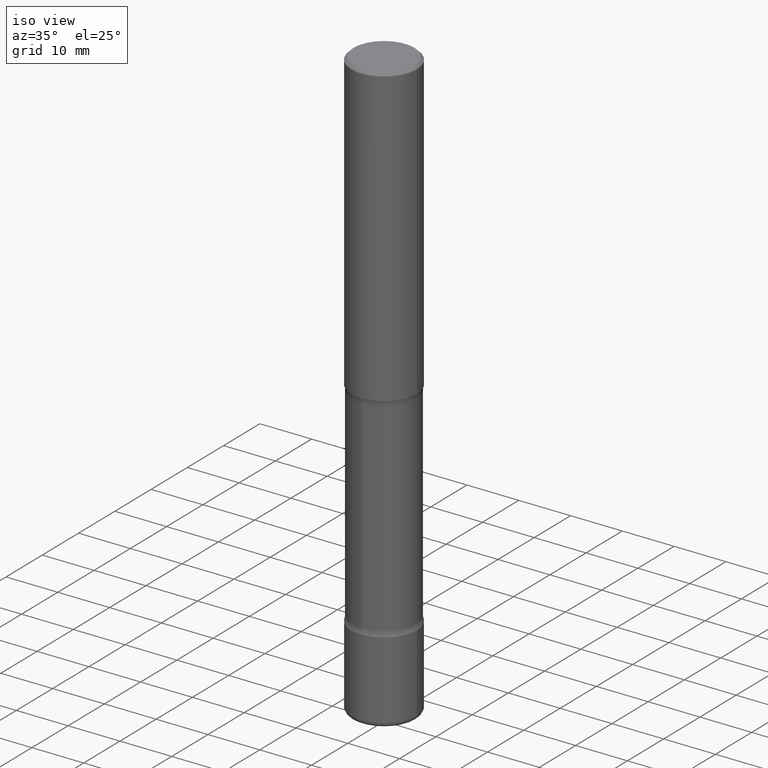
[diagram: clean part render]
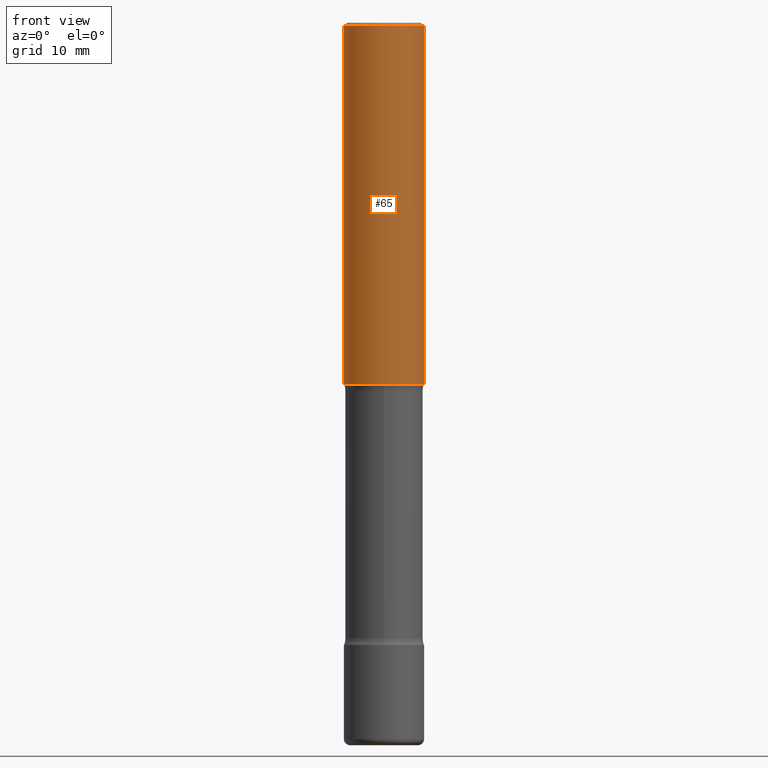
[diagram: tour spotlight — one face highlighted and labeled with its STEP entity id]
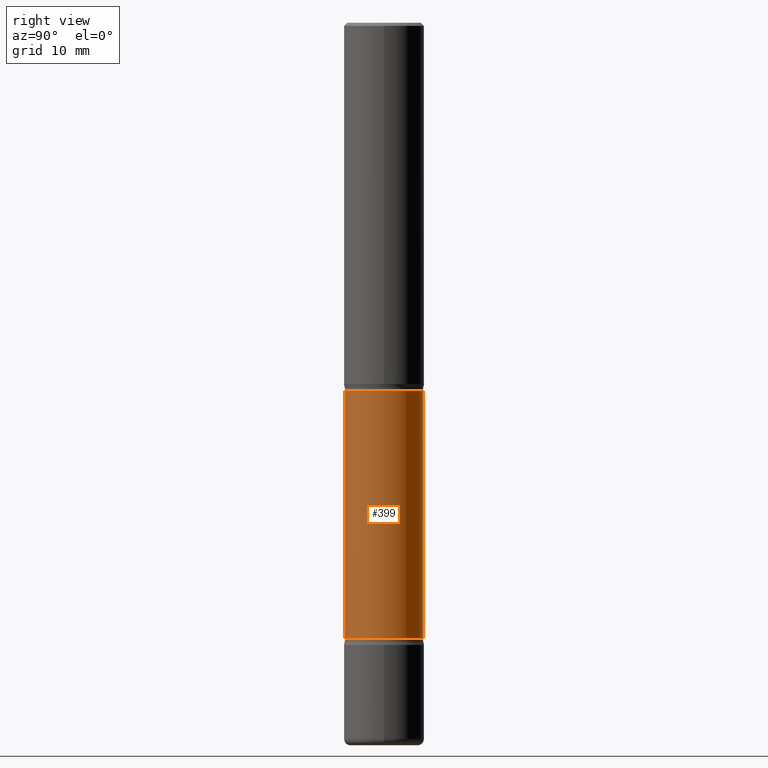
[diagram: tour spotlight — one face highlighted and labeled with its STEP entity id]
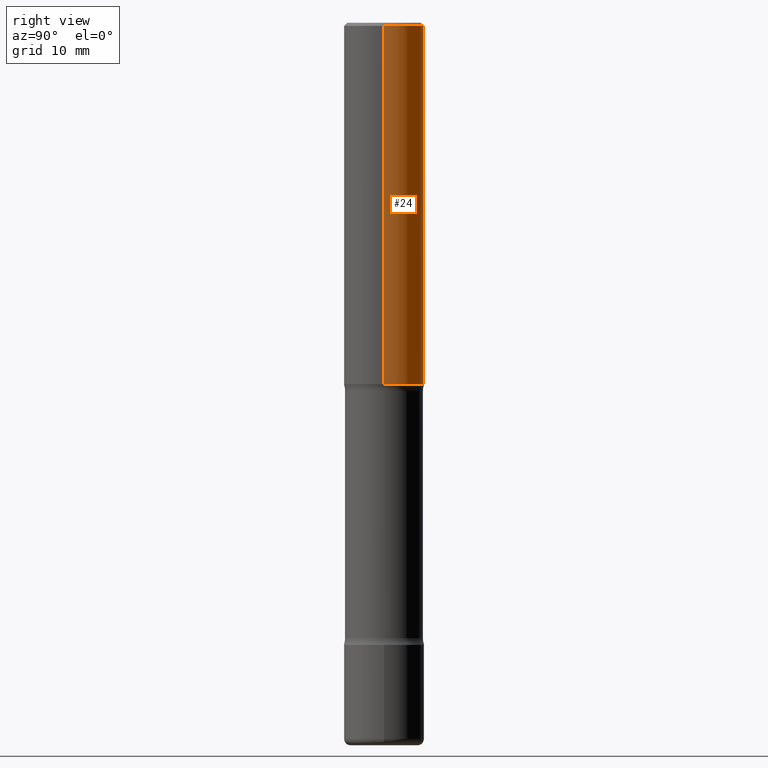
[diagram: tour spotlight — one face highlighted and labeled with its STEP entity id]
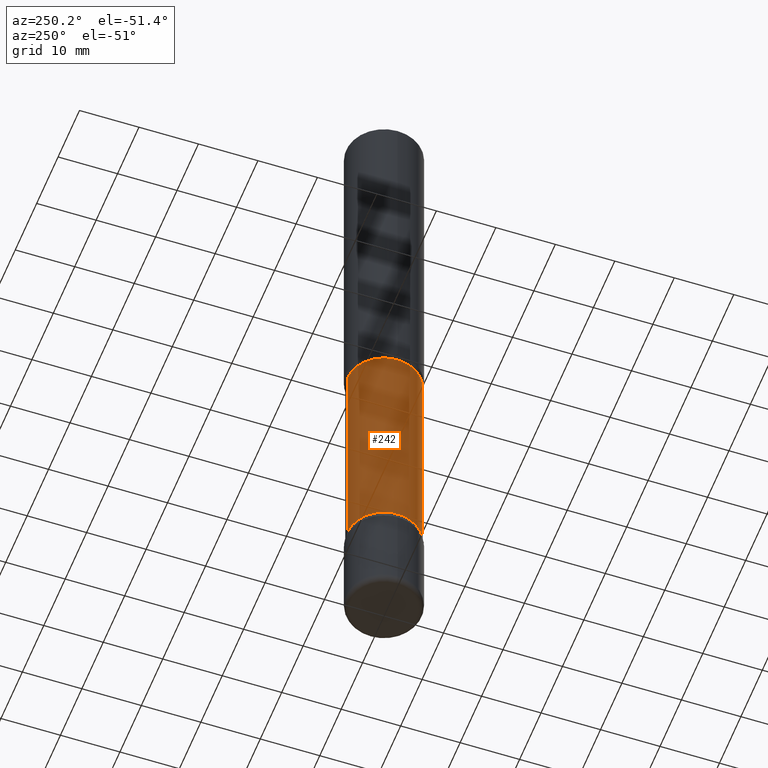
[diagram: tour spotlight — one face highlighted and labeled with its STEP entity id]
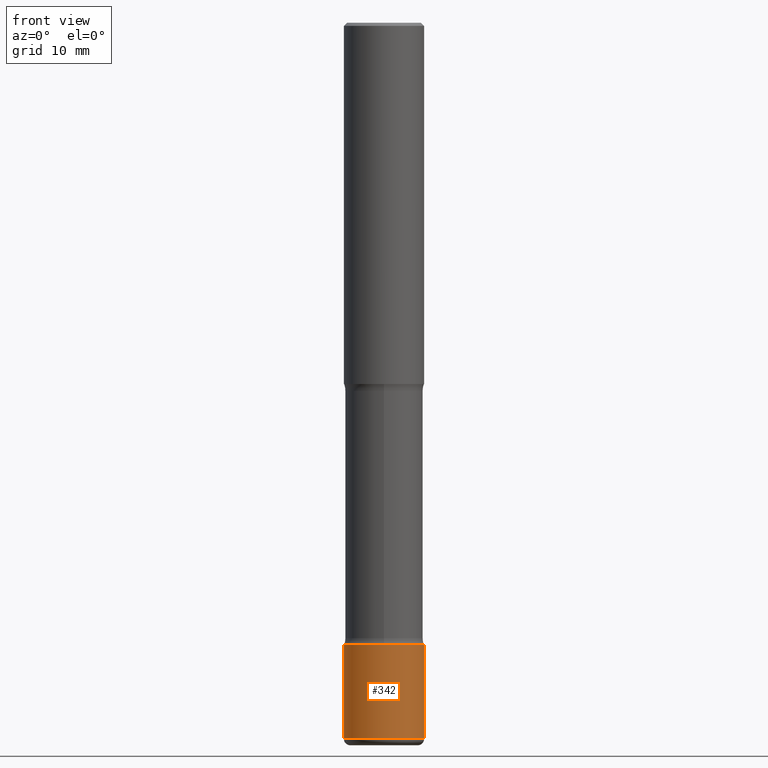
[diagram: tour spotlight — one face highlighted and labeled with its STEP entity id]
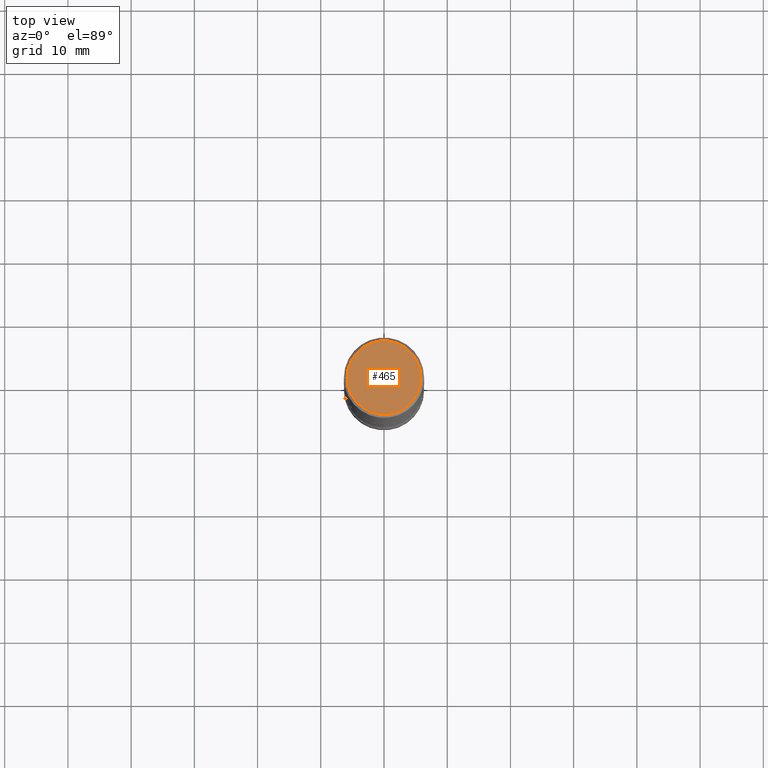
[diagram: tour spotlight — one face highlighted and labeled with its STEP entity id]
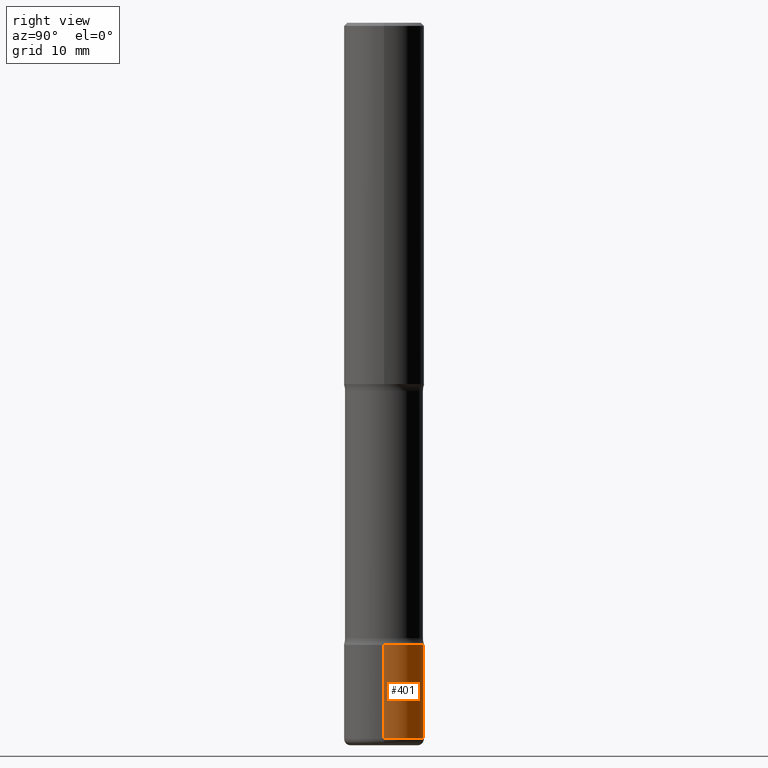
[diagram: tour spotlight — one face highlighted and labeled with its STEP entity id]
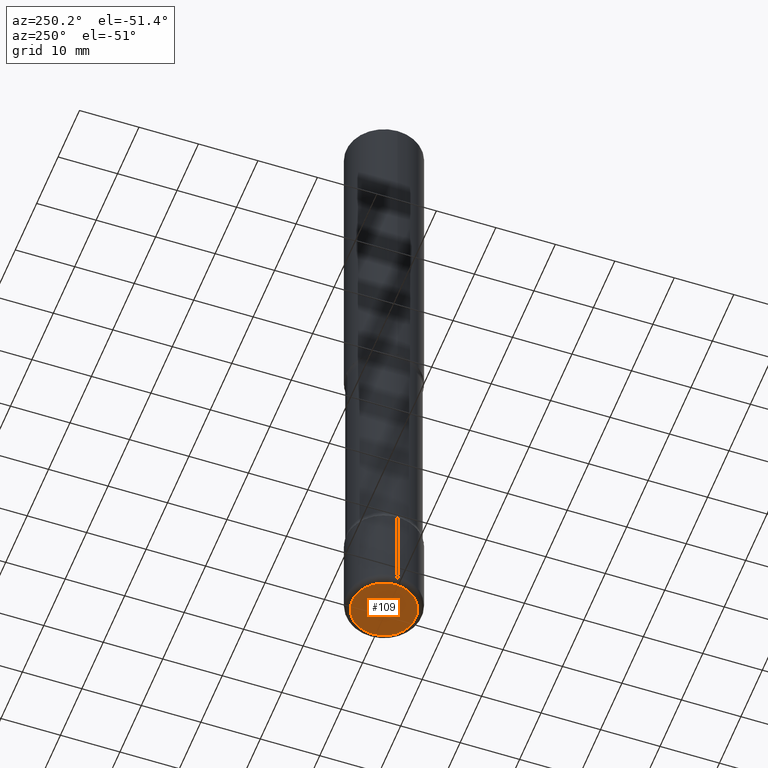
[diagram: tour spotlight — one face highlighted and labeled with its STEP entity id]
A machine part: a face-by-face anatomy tour. The part has 20 B-rep faces; the first image is the clean iso view, then the 8 largest visible faces are spotlighted one at a time (largest first), each with its STEP entity span.

Face 1 — front view, entity #65. In plain terms, the highlighted cylindrical surface (partial cylindrical patch) has radius 6.35 mm, axis along (-0, 0, 1).
Definition (entity closure, byte-faithful):
#25 = ORIENTED_EDGE ( 'NONE', *, *, #296, .F. ) ;
#33 = CARTESIAN_POINT ( 'NONE',  ( 5.502304813916556222E-29, -7.855833012397076871E-15, -2.249999999999999556 ) ) ;
#53 = CARTESIAN_POINT ( 'NONE',  ( 0.2500000000000000000, -1.745740669421566678E-15, 1.219044193948983948E-29 ) ) ;
#65 = ADVANCED_FACE ( 'NONE', ( #73 ), #195, .T. ) ;
#70 = CARTESIAN_POINT ( 'NONE',  ( 0.2500000000000001110, -9.601573681818645126E-15, -2.249999999999999556 ) ) ;
#73 = FACE_OUTER_BOUND ( 'NONE', #387, .T. ) ;
#98 = VERTEX_POINT ( 'NONE', #434 ) ;
#100 = EDGE_CURVE ( 'NONE', #412, #498, #202, .T. ) ;
#124 = DIRECTION ( 'NONE',  ( -2.445468806185136597E-29, 3.491481338843145583E-15, 1.000000000000000000 ) ) ;
#150 = AXIS2_PLACEMENT_3D ( 'NONE', #374, #549, #159 ) ;
#159 = DIRECTION ( 'NONE',  ( 1.000000000000000000, -6.982962677686266711E-15, 4.876176775795935793E-29 ) ) ;
#160 = DIRECTION ( 'NONE',  ( 1.000000000000000000, -6.982962677686266711E-15, 0.000000000000000000 ) ) ;
#162 = CARTESIAN_POINT ( 'NONE',  ( 4.890937612370289799E-31, -6.982962677686315028E-17, -0.02000000000000006981 ) ) ;
#184 = VECTOR ( 'NONE', #264, 39.37007874015748143 ) ;
#195 = CYLINDRICAL_SURFACE ( 'NONE', #150, 0.2500000000000000000 ) ;
#199 = CIRCLE ( 'NONE', #462, 0.2499999999999998890 ) ;
#202 = LINE ( 'NONE', #53, #245 ) ;
#245 = VECTOR ( 'NONE', #253, 39.37007874015748143 ) ;
#253 = DIRECTION ( 'NONE',  ( -2.445468806185136877E-29, 3.491481338843145188E-15, 1.000000000000000000 ) ) ;
#261 = AXIS2_PLACEMENT_3D ( 'NONE', #33, #539, #546 ) ;
#264 = DIRECTION ( 'NONE',  ( -2.445468806185136877E-29, 3.491481338843145188E-15, 1.000000000000000000 ) ) ;
#296 = EDGE_CURVE ( 'NONE', #98, #456, #521, .T. ) ;
#348 = ORIENTED_EDGE ( 'NONE', *, *, #470, .T. ) ;
#352 = CARTESIAN_POINT ( 'NONE',  ( -0.2500000000000000000, 1.776356839400250465E-15, -1.229733772563726445E-29 ) ) ;
#370 = CARTESIAN_POINT ( 'NONE',  ( -0.2499999999999998890, 1.675911042644702985E-15, -0.02000000000000006981 ) ) ;
#374 = CARTESIAN_POINT ( 'NONE',  ( 0.000000000000000000, 0.000000000000000000, 0.000000000000000000 ) ) ;
#387 = EDGE_LOOP ( 'NONE', ( #25, #348, #482, #398 ) ) ;
#398 = ORIENTED_EDGE ( 'NONE', *, *, #515, .F. ) ;
#412 = VERTEX_POINT ( 'NONE', #70 ) ;
#429 = CARTESIAN_POINT ( 'NONE',  ( 0.2499999999999998890, -1.784954126219745400E-15, -0.02000000000000006981 ) ) ;
#434 = CARTESIAN_POINT ( 'NONE',  ( -0.2500000000000001110, -2.186474480186716070E-15, -2.249999999999999556 ) ) ;
#456 = VERTEX_POINT ( 'NONE', #370 ) ;
#462 = AXIS2_PLACEMENT_3D ( 'NONE', #162, #124, #160 ) ;
#470 = EDGE_CURVE ( 'NONE', #98, #412, #486, .T. ) ;
#482 = ORIENTED_EDGE ( 'NONE', *, *, #100, .T. ) ;
#486 = CIRCLE ( 'NONE', #261, 0.2500000000000001110 ) ;
#498 = VERTEX_POINT ( 'NONE', #429 ) ;
#515 = EDGE_CURVE ( 'NONE', #456, #498, #199, .T. ) ;
#521 = LINE ( 'NONE', #352, #184 ) ;
#539 = DIRECTION ( 'NONE',  ( -2.445468806185136597E-29, 3.491481338843145583E-15, 1.000000000000000000 ) ) ;
#546 = DIRECTION ( 'NONE',  ( 1.000000000000000000, -6.982962677686267499E-15, 0.000000000000000000 ) ) ;
#549 = DIRECTION ( 'NONE',  ( -2.445468806185136597E-29, 3.491481338843145583E-15, 1.000000000000000000 ) ) ;

Face 2 — right view, entity #399. In plain terms, the highlighted cylindrical surface (partial cylindrical patch) has radius 6.1595 mm, axis along (0, -0, -1).
Definition (entity closure, byte-faithful):
#10 = CARTESIAN_POINT ( 'NONE',  ( 9.363764719991543116E-29, -1.339224012218709560E-14, -3.832353194726919376 ) ) ;
#48 = VECTOR ( 'NONE', #81, 39.37007874015748143 ) ;
#81 = DIRECTION ( 'NONE',  ( 2.636232731993832963E-29, -3.218296539476719458E-15, -1.000000000000000000 ) ) ;
#87 = CARTESIAN_POINT ( 'NONE',  ( -1.689397631951189894E-15, -0.2425000000000088196, -2.292646805273079735 ) ) ;
#89 = AXIS2_PLACEMENT_3D ( 'NONE', #459, #501, #234 ) ;
#94 = ORIENTED_EDGE ( 'NONE', *, *, #138, .T. ) ;
#131 = EDGE_LOOP ( 'NONE', ( #94, #147, #389, #263 ) ) ;
#133 = VERTEX_POINT ( 'NONE', #381 ) ;
#138 = EDGE_CURVE ( 'NONE', #133, #140, #216, .T. ) ;
#140 = VERTEX_POINT ( 'NONE', #87 ) ;
#147 = ORIENTED_EDGE ( 'NONE', *, *, #502, .T. ) ;
#177 = DIRECTION ( 'NONE',  ( 6.982962677686265922E-15, 1.000000000000000000, -2.253070510238567761E-15 ) ) ;
#190 = VECTOR ( 'NONE', #325, 39.37007874015748143 ) ;
#216 = CIRCLE ( 'NONE', #454, 0.2425000000000003542 ) ;
#233 = EDGE_CURVE ( 'NONE', #446, #524, #280, .T. ) ;
#234 = DIRECTION ( 'NONE',  ( 6.982962677686265922E-15, 1.000000000000000000, -2.253070510238566184E-15 ) ) ;
#263 = ORIENTED_EDGE ( 'NONE', *, *, #372, .F. ) ;
#277 = CARTESIAN_POINT ( 'NONE',  ( 1.693368449339031617E-15, 0.2424999999999846167, -4.500000000000000000 ) ) ;
#280 = CIRCLE ( 'NONE', #441, 0.2424999999999999656 ) ;
#284 = LINE ( 'NONE', #277, #190 ) ;
#286 = CARTESIAN_POINT ( 'NONE',  ( -1.663670764459486050E-15, -0.2425000000000156752, -4.499999999999999112 ) ) ;
#301 = CARTESIAN_POINT ( 'NONE',  ( 5.304740338453287996E-29, -8.437008377197611572E-15, -2.292646805273080179 ) ) ;
#324 = CYLINDRICAL_SURFACE ( 'NONE', #89, 0.2425000000000001321 ) ;
#325 = DIRECTION ( 'NONE',  ( 2.636232731993832963E-29, -3.218296539476719458E-15, -1.000000000000000000 ) ) ;
#372 = EDGE_CURVE ( 'NONE', #133, #446, #284, .T. ) ;
#381 = CARTESIAN_POINT ( 'NONE',  ( 1.693368449338975016E-15, 0.2424999999999919165, -2.292646805273081068 ) ) ;
#389 = ORIENTED_EDGE ( 'NONE', *, *, #233, .F. ) ;
#399 = ADVANCED_FACE ( 'NONE', ( #506 ), #324, .T. ) ;
#441 = AXIS2_PLACEMENT_3D ( 'NONE', #10, #448, #177 ) ;
#446 = VERTEX_POINT ( 'NONE', #460 ) ;
#448 = DIRECTION ( 'NONE',  ( 2.636232731993832963E-29, -3.218296539476719458E-15, -1.000000000000000000 ) ) ;
#454 = AXIS2_PLACEMENT_3D ( 'NONE', #301, #514, #478 ) ;
#459 = CARTESIAN_POINT ( 'NONE',  ( 1.112383708146354942E-28, -1.554092552519013667E-14, -4.499999999999999112 ) ) ;
#460 = CARTESIAN_POINT ( 'NONE',  ( 1.693368449339012881E-15, 0.2424999999999865874, -3.832353194726919821 ) ) ;
#478 = DIRECTION ( 'NONE',  ( 6.982962677686265922E-15, 1.000000000000000000, -3.379605765357846317E-15 ) ) ;
#501 = DIRECTION ( 'NONE',  ( 2.636232731993832963E-29, -3.218296539476719458E-15, -1.000000000000000000 ) ) ;
#502 = EDGE_CURVE ( 'NONE', #140, #524, #513, .T. ) ;
#506 = FACE_OUTER_BOUND ( 'NONE', #131, .T. ) ;
#513 = LINE ( 'NONE', #286, #48 ) ;
#514 = DIRECTION ( 'NONE',  ( 2.636232731993832963E-29, -3.218296539476719458E-15, -1.000000000000000000 ) ) ;
#524 = VERTEX_POINT ( 'NONE', #554 ) ;
#554 = CARTESIAN_POINT ( 'NONE',  ( -1.689397631951145520E-15, -0.2425000000000133715, -3.832353194726918932 ) ) ;

Face 3 — right view, entity #24. In plain terms, the highlighted cylindrical surface (partial cylindrical patch) has radius 6.35 mm, axis along (-0, 0, 1).
Definition (entity closure, byte-faithful):
#24 = ADVANCED_FACE ( 'NONE', ( #71 ), #364, .T. ) ;
#32 = AXIS2_PLACEMENT_3D ( 'NONE', #425, #334, #243 ) ;
#53 = CARTESIAN_POINT ( 'NONE',  ( 0.2500000000000000000, -1.745740669421566678E-15, 1.219044193948983948E-29 ) ) ;
#70 = CARTESIAN_POINT ( 'NONE',  ( 0.2500000000000001110, -9.601573681818645126E-15, -2.249999999999999556 ) ) ;
#71 = FACE_OUTER_BOUND ( 'NONE', #331, .T. ) ;
#98 = VERTEX_POINT ( 'NONE', #434 ) ;
#100 = EDGE_CURVE ( 'NONE', #412, #498, #202, .T. ) ;
#106 = CARTESIAN_POINT ( 'NONE',  ( 0.000000000000000000, 0.000000000000000000, 0.000000000000000000 ) ) ;
#118 = ORIENTED_EDGE ( 'NONE', *, *, #338, .T. ) ;
#130 = AXIS2_PLACEMENT_3D ( 'NONE', #106, #149, #508 ) ;
#142 = CARTESIAN_POINT ( 'NONE',  ( 5.502304813916556222E-29, -7.855833012397076871E-15, -2.249999999999999556 ) ) ;
#149 = DIRECTION ( 'NONE',  ( -2.445468806185136597E-29, 3.491481338843145583E-15, 1.000000000000000000 ) ) ;
#156 = CIRCLE ( 'NONE', #556, 0.2500000000000001110 ) ;
#184 = VECTOR ( 'NONE', #264, 39.37007874015748143 ) ;
#202 = LINE ( 'NONE', #53, #245 ) ;
#243 = DIRECTION ( 'NONE',  ( 1.000000000000000000, -6.982962677686266711E-15, 0.000000000000000000 ) ) ;
#245 = VECTOR ( 'NONE', #253, 39.37007874015748143 ) ;
#253 = DIRECTION ( 'NONE',  ( -2.445468806185136877E-29, 3.491481338843145188E-15, 1.000000000000000000 ) ) ;
#264 = DIRECTION ( 'NONE',  ( -2.445468806185136877E-29, 3.491481338843145188E-15, 1.000000000000000000 ) ) ;
#296 = EDGE_CURVE ( 'NONE', #98, #456, #521, .T. ) ;
#313 = DIRECTION ( 'NONE',  ( 1.000000000000000000, -6.982962677686267499E-15, 0.000000000000000000 ) ) ;
#331 = EDGE_LOOP ( 'NONE', ( #118, #344, #452, #495 ) ) ;
#334 = DIRECTION ( 'NONE',  ( -2.445468806185136597E-29, 3.491481338843145583E-15, 1.000000000000000000 ) ) ;
#338 = EDGE_CURVE ( 'NONE', #412, #98, #156, .T. ) ;
#344 = ORIENTED_EDGE ( 'NONE', *, *, #296, .T. ) ;
#352 = CARTESIAN_POINT ( 'NONE',  ( -0.2500000000000000000, 1.776356839400250465E-15, -1.229733772563726445E-29 ) ) ;
#364 = CYLINDRICAL_SURFACE ( 'NONE', #130, 0.2500000000000000000 ) ;
#370 = CARTESIAN_POINT ( 'NONE',  ( -0.2499999999999998890, 1.675911042644702985E-15, -0.02000000000000006981 ) ) ;
#412 = VERTEX_POINT ( 'NONE', #70 ) ;
#425 = CARTESIAN_POINT ( 'NONE',  ( 4.890937612370289799E-31, -6.982962677686315028E-17, -0.02000000000000006981 ) ) ;
#429 = CARTESIAN_POINT ( 'NONE',  ( 0.2499999999999998890, -1.784954126219745400E-15, -0.02000000000000006981 ) ) ;
#434 = CARTESIAN_POINT ( 'NONE',  ( -0.2500000000000001110, -2.186474480186716070E-15, -2.249999999999999556 ) ) ;
#452 = ORIENTED_EDGE ( 'NONE', *, *, #544, .F. ) ;
#453 = DIRECTION ( 'NONE',  ( -2.445468806185136597E-29, 3.491481338843145583E-15, 1.000000000000000000 ) ) ;
#456 = VERTEX_POINT ( 'NONE', #370 ) ;
#495 = ORIENTED_EDGE ( 'NONE', *, *, #100, .F. ) ;
#498 = VERTEX_POINT ( 'NONE', #429 ) ;
#508 = DIRECTION ( 'NONE',  ( 1.000000000000000000, -6.982962677686266711E-15, 4.876176775795935793E-29 ) ) ;
#512 = CIRCLE ( 'NONE', #32, 0.2499999999999998890 ) ;
#521 = LINE ( 'NONE', #352, #184 ) ;
#544 = EDGE_CURVE ( 'NONE', #498, #456, #512, .T. ) ;
#556 = AXIS2_PLACEMENT_3D ( 'NONE', #142, #453, #313 ) ;

Face 4 — auxiliary view, entity #242. In plain terms, the highlighted cylindrical surface (partial cylindrical patch) has radius 6.1595 mm, axis along (0, -0, -1).
Definition (entity closure, byte-faithful):
#11 = ORIENTED_EDGE ( 'NONE', *, *, #502, .F. ) ;
#15 = DIRECTION ( 'NONE',  ( 2.636232731993832963E-29, -3.218296539476719458E-15, -1.000000000000000000 ) ) ;
#47 = AXIS2_PLACEMENT_3D ( 'NONE', #143, #316, #220 ) ;
#48 = VECTOR ( 'NONE', #81, 39.37007874015748143 ) ;
#52 = EDGE_CURVE ( 'NONE', #524, #446, #418, .T. ) ;
#69 = DIRECTION ( 'NONE',  ( 2.636232731993832963E-29, -3.218296539476719458E-15, -1.000000000000000000 ) ) ;
#81 = DIRECTION ( 'NONE',  ( 2.636232731993832963E-29, -3.218296539476719458E-15, -1.000000000000000000 ) ) ;
#87 = CARTESIAN_POINT ( 'NONE',  ( -1.689397631951189894E-15, -0.2425000000000088196, -2.292646805273079735 ) ) ;
#88 = CIRCLE ( 'NONE', #410, 0.2425000000000003542 ) ;
#103 = ORIENTED_EDGE ( 'NONE', *, *, #372, .T. ) ;
#113 = CARTESIAN_POINT ( 'NONE',  ( 9.363764719991543116E-29, -1.339224012218709560E-14, -3.832353194726919376 ) ) ;
#133 = VERTEX_POINT ( 'NONE', #381 ) ;
#140 = VERTEX_POINT ( 'NONE', #87 ) ;
#143 = CARTESIAN_POINT ( 'NONE',  ( 1.112383708146354942E-28, -1.554092552519013667E-14, -4.499999999999999112 ) ) ;
#174 = ORIENTED_EDGE ( 'NONE', *, *, #52, .F. ) ;
#190 = VECTOR ( 'NONE', #325, 39.37007874015748143 ) ;
#220 = DIRECTION ( 'NONE',  ( 6.982962677686265922E-15, 1.000000000000000000, -2.253070510238566184E-15 ) ) ;
#242 = ADVANCED_FACE ( 'NONE', ( #350 ), #407, .T. ) ;
#275 = DIRECTION ( 'NONE',  ( 6.982962677686265922E-15, 1.000000000000000000, -2.253070510238567761E-15 ) ) ;
#277 = CARTESIAN_POINT ( 'NONE',  ( 1.693368449339031617E-15, 0.2424999999999846167, -4.500000000000000000 ) ) ;
#284 = LINE ( 'NONE', #277, #190 ) ;
#286 = CARTESIAN_POINT ( 'NONE',  ( -1.663670764459486050E-15, -0.2425000000000156752, -4.499999999999999112 ) ) ;
#294 = EDGE_CURVE ( 'NONE', #140, #133, #88, .T. ) ;
#315 = ORIENTED_EDGE ( 'NONE', *, *, #294, .T. ) ;
#316 = DIRECTION ( 'NONE',  ( 2.636232731993832963E-29, -3.218296539476719458E-15, -1.000000000000000000 ) ) ;
#325 = DIRECTION ( 'NONE',  ( 2.636232731993832963E-29, -3.218296539476719458E-15, -1.000000000000000000 ) ) ;
#350 = FACE_OUTER_BOUND ( 'NONE', #530, .T. ) ;
#357 = DIRECTION ( 'NONE',  ( 6.982962677686265922E-15, 1.000000000000000000, -3.379605765357846317E-15 ) ) ;
#372 = EDGE_CURVE ( 'NONE', #133, #446, #284, .T. ) ;
#381 = CARTESIAN_POINT ( 'NONE',  ( 1.693368449338975016E-15, 0.2424999999999919165, -2.292646805273081068 ) ) ;
#405 = CARTESIAN_POINT ( 'NONE',  ( 5.304740338453287996E-29, -8.437008377197611572E-15, -2.292646805273080179 ) ) ;
#407 = CYLINDRICAL_SURFACE ( 'NONE', #47, 0.2425000000000001321 ) ;
#410 = AXIS2_PLACEMENT_3D ( 'NONE', #405, #15, #357 ) ;
#418 = CIRCLE ( 'NONE', #505, 0.2424999999999999656 ) ;
#446 = VERTEX_POINT ( 'NONE', #460 ) ;
#460 = CARTESIAN_POINT ( 'NONE',  ( 1.693368449339012881E-15, 0.2424999999999865874, -3.832353194726919821 ) ) ;
#502 = EDGE_CURVE ( 'NONE', #140, #524, #513, .T. ) ;
#505 = AXIS2_PLACEMENT_3D ( 'NONE', #113, #69, #275 ) ;
#513 = LINE ( 'NONE', #286, #48 ) ;
#524 = VERTEX_POINT ( 'NONE', #554 ) ;
#530 = EDGE_LOOP ( 'NONE', ( #11, #315, #103, #174 ) ) ;
#554 = CARTESIAN_POINT ( 'NONE',  ( -1.689397631951145520E-15, -0.2425000000000133715, -3.832353194726918932 ) ) ;

Face 5 — front view, entity #342. In plain terms, the highlighted cylindrical surface (partial cylindrical patch) has radius 6.35 mm, axis along (-0, 0, 1).
Definition (entity closure, byte-faithful):
#26 = CYLINDRICAL_SURFACE ( 'NONE', #288, 0.2500000000000000555 ) ;
#30 = CARTESIAN_POINT ( 'NONE',  ( 0.000000000000000000, 0.000000000000000000, 0.000000000000000000 ) ) ;
#31 = VECTOR ( 'NONE', #135, 39.37007874015748143 ) ;
#34 = DIRECTION ( 'NONE',  ( -2.445468806185136597E-29, 3.491481338843145583E-15, 1.000000000000000000 ) ) ;
#51 = VERTEX_POINT ( 'NONE', #321 ) ;
#58 = ORIENTED_EDGE ( 'NONE', *, *, #154, .F. ) ;
#61 = CARTESIAN_POINT ( 'NONE',  ( -0.2500000000000000555, 1.776356839400250859E-15, -1.229733772563726866E-29 ) ) ;
#135 = DIRECTION ( 'NONE',  ( -2.445468806185136877E-29, 3.491481338843145188E-15, 1.000000000000000000 ) ) ;
#154 = EDGE_CURVE ( 'NONE', #51, #179, #467, .T. ) ;
#165 = AXIS2_PLACEMENT_3D ( 'NONE', #413, #34, #329 ) ;
#179 = VERTEX_POINT ( 'NONE', #469 ) ;
#180 = ORIENTED_EDGE ( 'NONE', *, *, #422, .T. ) ;
#227 = EDGE_LOOP ( 'NONE', ( #476, #180, #303, #58 ) ) ;
#246 = DIRECTION ( 'NONE',  ( 1.000000000000000000, -6.982962677686269077E-15, 0.000000000000000000 ) ) ;
#247 = DIRECTION ( 'NONE',  ( -2.445468806185136597E-29, 3.491481338843145583E-15, 1.000000000000000000 ) ) ;
#258 = VERTEX_POINT ( 'NONE', #444 ) ;
#278 = EDGE_CURVE ( 'NONE', #258, #179, #362, .T. ) ;
#279 = CARTESIAN_POINT ( 'NONE',  ( -0.2499999999999999167, -1.379564993184017984E-14, -4.459999999999999964 ) ) ;
#288 = AXIS2_PLACEMENT_3D ( 'NONE', #30, #322, #545 ) ;
#291 = EDGE_CURVE ( 'NONE', #424, #51, #307, .T. ) ;
#303 = ORIENTED_EDGE ( 'NONE', *, *, #278, .T. ) ;
#307 = LINE ( 'NONE', #61, #319 ) ;
#319 = VECTOR ( 'NONE', #409, 39.37007874015748143 ) ;
#321 = CARTESIAN_POINT ( 'NONE',  ( -0.2500000000000000555, -1.277439164022855686E-14, -3.874999999999999556 ) ) ;
#322 = DIRECTION ( 'NONE',  ( -2.445468806185136597E-29, 3.491481338843145583E-15, 1.000000000000000000 ) ) ;
#329 = DIRECTION ( 'NONE',  ( 1.000000000000000000, -6.982962677686269077E-15, 0.000000000000000000 ) ) ;
#333 = CARTESIAN_POINT ( 'NONE',  ( 9.476191623967404313E-29, -1.352949018801718751E-14, -3.874999999999999556 ) ) ;
#342 = ADVANCED_FACE ( 'NONE', ( #489 ), #26, .T. ) ;
#362 = LINE ( 'NONE', #526, #31 ) ;
#409 = DIRECTION ( 'NONE',  ( -2.445468806185136877E-29, 3.491481338843145188E-15, 1.000000000000000000 ) ) ;
#413 = CARTESIAN_POINT ( 'NONE',  ( 1.090679087558570850E-28, -1.557200677124043030E-14, -4.459999999999999964 ) ) ;
#422 = EDGE_CURVE ( 'NONE', #424, #258, #433, .T. ) ;
#424 = VERTEX_POINT ( 'NONE', #279 ) ;
#433 = CIRCLE ( 'NONE', #165, 0.2500000000000000555 ) ;
#444 = CARTESIAN_POINT ( 'NONE',  ( 0.2499999999999999167, -1.731774744066199698E-14, -4.459999999999999964 ) ) ;
#467 = CIRCLE ( 'NONE', #519, 0.2500000000000000555 ) ;
#469 = CARTESIAN_POINT ( 'NONE',  ( 0.2500000000000000555, -1.527523085743875418E-14, -3.874999999999999556 ) ) ;
#476 = ORIENTED_EDGE ( 'NONE', *, *, #291, .F. ) ;
#489 = FACE_OUTER_BOUND ( 'NONE', #227, .T. ) ;
#519 = AXIS2_PLACEMENT_3D ( 'NONE', #333, #247, #246 ) ;
#526 = CARTESIAN_POINT ( 'NONE',  ( 0.2500000000000000555, -1.745740669421567269E-15, 1.219044193948984228E-29 ) ) ;
#545 = DIRECTION ( 'NONE',  ( 1.000000000000000000, -6.982962677686267499E-15, 4.876176775795935793E-29 ) ) ;

Face 6 — top view, entity #465. In plain terms, the highlighted planar face has unit normal (0, -0, -1).
Definition (entity closure, byte-faithful):
#42 = CARTESIAN_POINT ( 'NONE',  ( -0.2299999999999998435, 1.640996229256271730E-15, -1.135408596578605280E-29 ) ) ;
#75 = FACE_OUTER_BOUND ( 'NONE', #458, .T. ) ;
#146 = EDGE_CURVE ( 'NONE', #408, #185, #497, .T. ) ;
#152 = CARTESIAN_POINT ( 'NONE',  ( 0.000000000000000000, 0.000000000000000000, 0.000000000000000000 ) ) ;
#164 = DIRECTION ( 'NONE',  ( 1.000000000000000000, -6.982962677686266711E-15, 4.876176775795935793E-29 ) ) ;
#166 = DIRECTION ( 'NONE',  ( -2.445468806185136597E-29, 3.491481338843145583E-15, 1.000000000000000000 ) ) ;
#185 = VERTEX_POINT ( 'NONE', #42 ) ;
#191 = CIRCLE ( 'NONE', #282, 0.2299999999999998435 ) ;
#232 = DIRECTION ( 'NONE',  ( 2.438088387897960049E-29, -3.491481338843145188E-15, -1.000000000000000000 ) ) ;
#239 = PLANE ( 'NONE',  #468 ) ;
#274 = DIRECTION ( 'NONE',  ( 1.000000000000000000, -6.982962677686266711E-15, 4.876176775795935793E-29 ) ) ;
#282 = AXIS2_PLACEMENT_3D ( 'NONE', #152, #365, #274 ) ;
#318 = CARTESIAN_POINT ( 'NONE',  ( 1.606081415867840081E-15, 0.2299999999999998435, -8.030407079339229002E-16 ) ) ;
#360 = ORIENTED_EDGE ( 'NONE', *, *, #146, .T. ) ;
#365 = DIRECTION ( 'NONE',  ( -2.445468806185136597E-29, 3.491481338843145583E-15, 1.000000000000000000 ) ) ;
#375 = AXIS2_PLACEMENT_3D ( 'NONE', #553, #166, #164 ) ;
#404 = EDGE_CURVE ( 'NONE', #185, #408, #191, .T. ) ;
#408 = VERTEX_POINT ( 'NONE', #548 ) ;
#421 = DIRECTION ( 'NONE',  ( -1.000000000000000000, 6.982962677686265922E-15, -4.876176775795935793E-29 ) ) ;
#458 = EDGE_LOOP ( 'NONE', ( #527, #360 ) ) ;
#465 = ADVANCED_FACE ( 'NONE', ( #75 ), #239, .F. ) ;
#468 = AXIS2_PLACEMENT_3D ( 'NONE', #318, #232, #421 ) ;
#497 = CIRCLE ( 'NONE', #375, 0.2299999999999998435 ) ;
#527 = ORIENTED_EDGE ( 'NONE', *, *, #404, .T. ) ;
#548 = CARTESIAN_POINT ( 'NONE',  ( 0.2299999999999998435, -1.681434332853598222E-15, 1.149527484987432240E-29 ) ) ;
#553 = CARTESIAN_POINT ( 'NONE',  ( 0.000000000000000000, 0.000000000000000000, 0.000000000000000000 ) ) ;

Face 7 — right view, entity #401. In plain terms, the highlighted cylindrical surface (partial cylindrical patch) has radius 6.35 mm, axis along (-0, 0, 1).
Definition (entity closure, byte-faithful):
#28 = EDGE_LOOP ( 'NONE', ( #230, #312, #317, #188 ) ) ;
#31 = VECTOR ( 'NONE', #135, 39.37007874015748143 ) ;
#44 = DIRECTION ( 'NONE',  ( 1.000000000000000000, -6.982962677686269077E-15, 0.000000000000000000 ) ) ;
#46 = CARTESIAN_POINT ( 'NONE',  ( 1.090679087558570850E-28, -1.557200677124043030E-14, -4.459999999999999964 ) ) ;
#51 = VERTEX_POINT ( 'NONE', #321 ) ;
#61 = CARTESIAN_POINT ( 'NONE',  ( -0.2500000000000000555, 1.776356839400250859E-15, -1.229733772563726866E-29 ) ) ;
#76 = AXIS2_PLACEMENT_3D ( 'NONE', #343, #518, #386 ) ;
#78 = DIRECTION ( 'NONE',  ( -2.445468806185136597E-29, 3.491481338843145583E-15, 1.000000000000000000 ) ) ;
#79 = EDGE_CURVE ( 'NONE', #179, #51, #336, .T. ) ;
#85 = DIRECTION ( 'NONE',  ( -2.445468806185136597E-29, 3.491481338843145583E-15, 1.000000000000000000 ) ) ;
#112 = CYLINDRICAL_SURFACE ( 'NONE', #533, 0.2500000000000000555 ) ;
#117 = DIRECTION ( 'NONE',  ( 1.000000000000000000, -6.982962677686267499E-15, 4.876176775795935793E-29 ) ) ;
#135 = DIRECTION ( 'NONE',  ( -2.445468806185136877E-29, 3.491481338843145188E-15, 1.000000000000000000 ) ) ;
#179 = VERTEX_POINT ( 'NONE', #469 ) ;
#188 = ORIENTED_EDGE ( 'NONE', *, *, #278, .F. ) ;
#189 = CARTESIAN_POINT ( 'NONE',  ( 0.000000000000000000, 0.000000000000000000, 0.000000000000000000 ) ) ;
#197 = CIRCLE ( 'NONE', #531, 0.2500000000000000555 ) ;
#198 = EDGE_CURVE ( 'NONE', #258, #424, #197, .T. ) ;
#230 = ORIENTED_EDGE ( 'NONE', *, *, #198, .T. ) ;
#258 = VERTEX_POINT ( 'NONE', #444 ) ;
#278 = EDGE_CURVE ( 'NONE', #258, #179, #362, .T. ) ;
#279 = CARTESIAN_POINT ( 'NONE',  ( -0.2499999999999999167, -1.379564993184017984E-14, -4.459999999999999964 ) ) ;
#291 = EDGE_CURVE ( 'NONE', #424, #51, #307, .T. ) ;
#307 = LINE ( 'NONE', #61, #319 ) ;
#312 = ORIENTED_EDGE ( 'NONE', *, *, #291, .T. ) ;
#317 = ORIENTED_EDGE ( 'NONE', *, *, #79, .F. ) ;
#319 = VECTOR ( 'NONE', #409, 39.37007874015748143 ) ;
#321 = CARTESIAN_POINT ( 'NONE',  ( -0.2500000000000000555, -1.277439164022855686E-14, -3.874999999999999556 ) ) ;
#336 = CIRCLE ( 'NONE', #76, 0.2500000000000000555 ) ;
#343 = CARTESIAN_POINT ( 'NONE',  ( 9.476191623967404313E-29, -1.352949018801718751E-14, -3.874999999999999556 ) ) ;
#362 = LINE ( 'NONE', #526, #31 ) ;
#386 = DIRECTION ( 'NONE',  ( 1.000000000000000000, -6.982962677686269077E-15, 0.000000000000000000 ) ) ;
#401 = ADVANCED_FACE ( 'NONE', ( #423 ), #112, .T. ) ;
#409 = DIRECTION ( 'NONE',  ( -2.445468806185136877E-29, 3.491481338843145188E-15, 1.000000000000000000 ) ) ;
#423 = FACE_OUTER_BOUND ( 'NONE', #28, .T. ) ;
#424 = VERTEX_POINT ( 'NONE', #279 ) ;
#444 = CARTESIAN_POINT ( 'NONE',  ( 0.2499999999999999167, -1.731774744066199698E-14, -4.459999999999999964 ) ) ;
#469 = CARTESIAN_POINT ( 'NONE',  ( 0.2500000000000000555, -1.527523085743875418E-14, -3.874999999999999556 ) ) ;
#518 = DIRECTION ( 'NONE',  ( -2.445468806185136597E-29, 3.491481338843145583E-15, 1.000000000000000000 ) ) ;
#526 = CARTESIAN_POINT ( 'NONE',  ( 0.2500000000000000555, -1.745740669421567269E-15, 1.219044193948984228E-29 ) ) ;
#531 = AXIS2_PLACEMENT_3D ( 'NONE', #46, #85, #44 ) ;
#533 = AXIS2_PLACEMENT_3D ( 'NONE', #189, #78, #117 ) ;

Face 8 — auxiliary view, entity #109. In plain terms, the highlighted planar face has unit normal (0, -0, -1).
Definition (entity closure, byte-faithful):
#7 = AXIS2_PLACEMENT_3D ( 'NONE', #491, #105, #68 ) ;
#68 = DIRECTION ( 'NONE',  ( 1.000000000000000000, -6.982962677686265922E-15, 0.000000000000000000 ) ) ;
#82 = FACE_OUTER_BOUND ( 'NONE', #308, .T. ) ;
#96 = DIRECTION ( 'NONE',  ( -2.445468806185136597E-29, 3.491481338843145583E-15, 1.000000000000000000 ) ) ;
#105 = DIRECTION ( 'NONE',  ( -2.445468806185136597E-29, 3.491481338843145583E-15, 1.000000000000000000 ) ) ;
#108 = DIRECTION ( 'NONE',  ( 1.000000000000000000, -6.982962677686265922E-15, 0.000000000000000000 ) ) ;
#109 = ADVANCED_FACE ( 'NONE', ( #82 ), #510, .T. ) ;
#122 = CARTESIAN_POINT ( 'NONE',  ( 1.100460962783311244E-28, -1.571166602479415374E-14, -4.499999999999999112 ) ) ;
#126 = DIRECTION ( 'NONE',  ( 2.438088387897960049E-29, -3.491481338843145188E-15, -1.000000000000000000 ) ) ;
#129 = DIRECTION ( 'NONE',  ( -1.000000000000000000, 6.982962677686265922E-15, -4.876176775795935793E-29 ) ) ;
#163 = AXIS2_PLACEMENT_3D ( 'NONE', #122, #126, #129 ) ;
#170 = VERTEX_POINT ( 'NONE', #430 ) ;
#194 = CARTESIAN_POINT ( 'NONE',  ( 0.2100000000000000477, -1.717808818710827038E-14, -4.499999999999999112 ) ) ;
#237 = EDGE_CURVE ( 'NONE', #170, #438, #310, .T. ) ;
#257 = CARTESIAN_POINT ( 'NONE',  ( 1.100460962783311244E-28, -1.571166602479415374E-14, -4.499999999999999112 ) ) ;
#272 = CIRCLE ( 'NONE', #7, 0.2100000000000000477 ) ;
#276 = EDGE_CURVE ( 'NONE', #438, #170, #272, .T. ) ;
#298 = ORIENTED_EDGE ( 'NONE', *, *, #276, .F. ) ;
#308 = EDGE_LOOP ( 'NONE', ( #298, #378 ) ) ;
#310 = CIRCLE ( 'NONE', #326, 0.2100000000000000477 ) ;
#326 = AXIS2_PLACEMENT_3D ( 'NONE', #257, #96, #108 ) ;
#378 = ORIENTED_EDGE ( 'NONE', *, *, #237, .F. ) ;
#430 = CARTESIAN_POINT ( 'NONE',  ( -0.2100000000000000477, -1.400758810576906172E-14, -4.499999999999999112 ) ) ;
#438 = VERTEX_POINT ( 'NONE', #194 ) ;
#491 = CARTESIAN_POINT ( 'NONE',  ( 1.100460962783311244E-28, -1.571166602479415374E-14, -4.499999999999999112 ) ) ;
#510 = PLANE ( 'NONE',  #163 ) ;